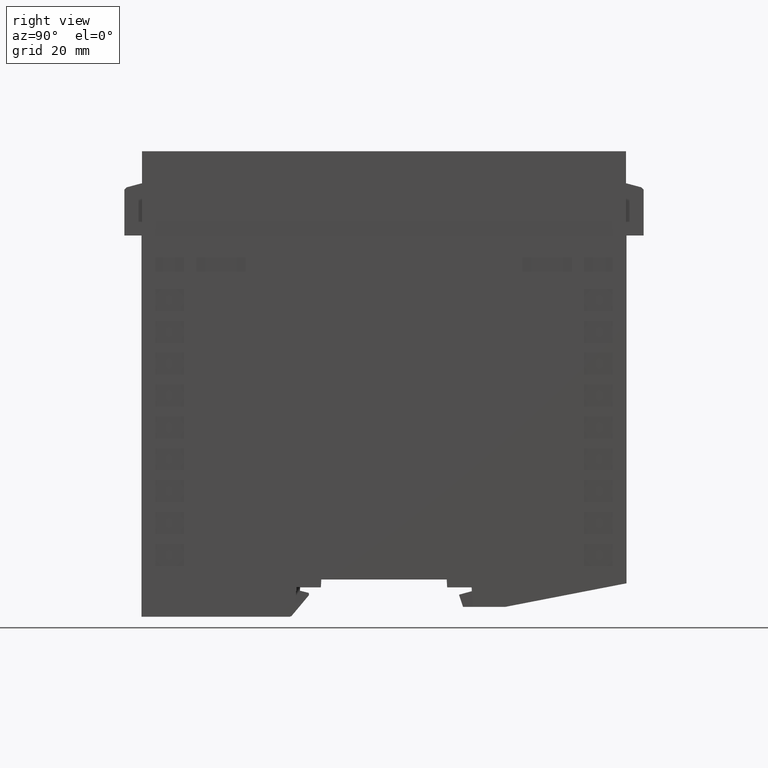
[diagram: clean part render]
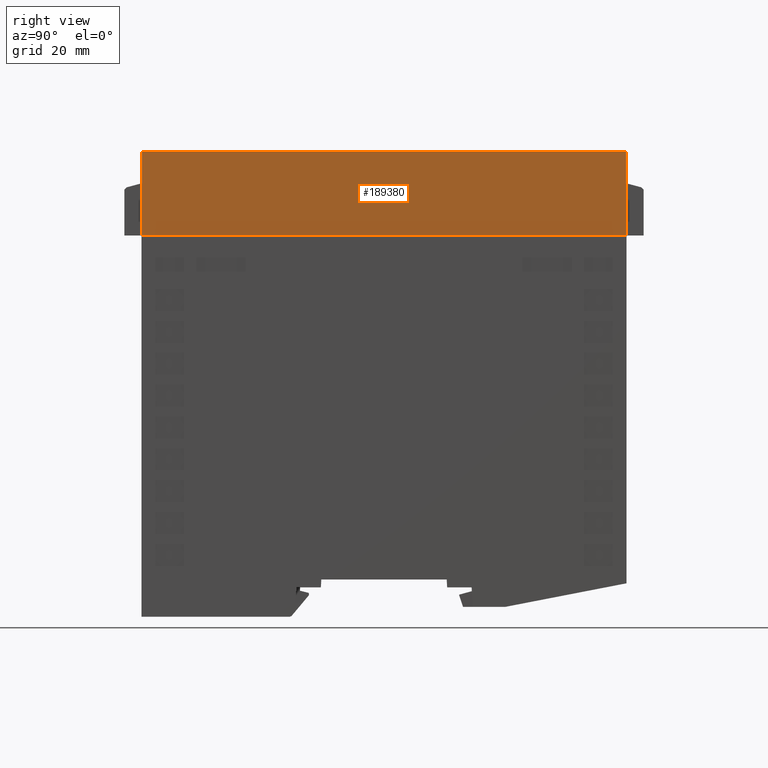
[diagram: same view with one face highlighted and labeled with its STEP entity id]
A machine part, right view. The second image highlights one B-rep face of the part: STEP entity #189380.
In plain terms, the highlighted planar face has unit normal (1, 0, -0).
Its self-contained STEP definition (entity closure, byte-faithful):
#600=CARTESIAN_POINT('',(-15.9,89.,49.4));
#610=VERTEX_POINT('',#600);
#640=CARTESIAN_POINT('',(-15.9,89.,0.));
#650=DIRECTION('',(0.,0.,-1.));
#660=VECTOR('',#650,1.);
#670=LINE('',#640,#660);
#680=CARTESIAN_POINT('',(-15.9,89.,-49.4));
#690=VERTEX_POINT('',#680);
#700=EDGE_CURVE('',#610,#690,#670,.T.);
#140910=CARTESIAN_POINT('',(-15.9,71.8,-49.4));
#140920=VERTEX_POINT('',#140910);
#140950=CARTESIAN_POINT('',(-15.9,71.8,-1.63606349675771E-14));
#140960=DIRECTION('',(0.,-2.22044604925031E-16,-1.));
#140970=VECTOR('',#140960,1.);
#140980=LINE('',#140950,#140970);
#140990=CARTESIAN_POINT('',(-15.9,71.8,49.4));
#141000=VERTEX_POINT('',#140990);
#141010=EDGE_CURVE('',#141000,#140920,#140980,.T.);
#189170=CARTESIAN_POINT('',(-15.9,45.2432504564751,-2.1316282072803E-14)
);
#189180=DIRECTION('',(-1.,0.,0.));
#189190=DIRECTION('',(0.,2.22044604925031E-16,1.));
#189200=AXIS2_PLACEMENT_3D('',#189170,#189180,#189190);
#189210=PLANE('',#189200);
#189220=ORIENTED_EDGE('',*,*,#700,.T.);
#189230=CARTESIAN_POINT('',(-15.9,71.8,49.4));
#189240=DIRECTION('',(0.,1.,0.));
#189250=VECTOR('',#189240,1.);
#189260=LINE('',#189230,#189250);
#189270=EDGE_CURVE('',#141000,#610,#189260,.T.);
#189280=ORIENTED_EDGE('',*,*,#189270,.T.);
#189290=ORIENTED_EDGE('',*,*,#141010,.F.);
#189300=CARTESIAN_POINT('',(-15.9,71.8,-49.4));
#189310=DIRECTION('',(0.,-1.,2.22044604925031E-16));
#189320=VECTOR('',#189310,1.);
#189330=LINE('',#189300,#189320);
#189340=EDGE_CURVE('',#690,#140920,#189330,.T.);
#189350=ORIENTED_EDGE('',*,*,#189340,.T.);
#189360=EDGE_LOOP('',(#189350,#189290,#189280,#189220));
#189370=FACE_OUTER_BOUND('',#189360,.T.);
#189380=ADVANCED_FACE('',(#189370),#189210,.T.);